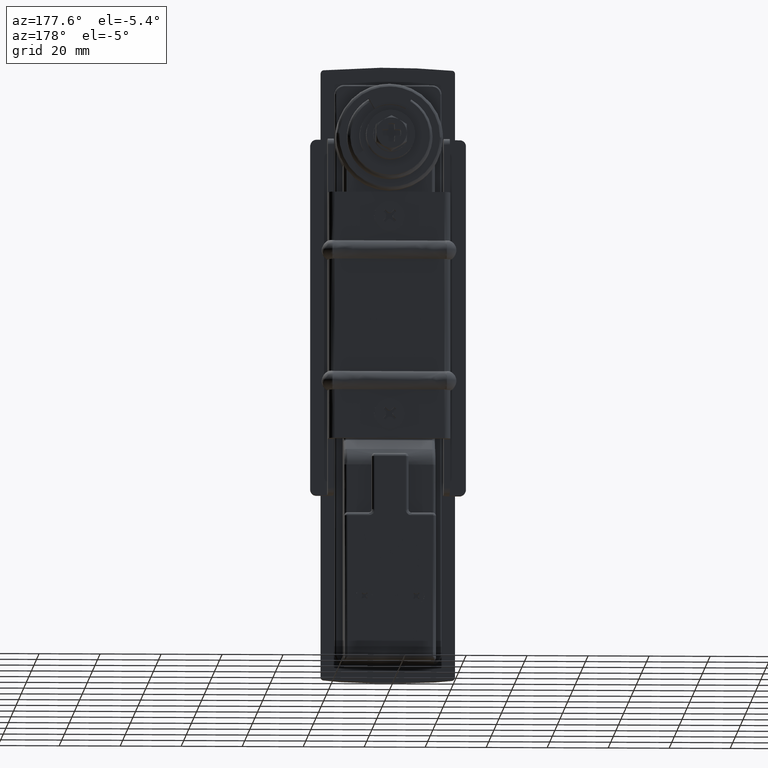
[diagram: clean part render]
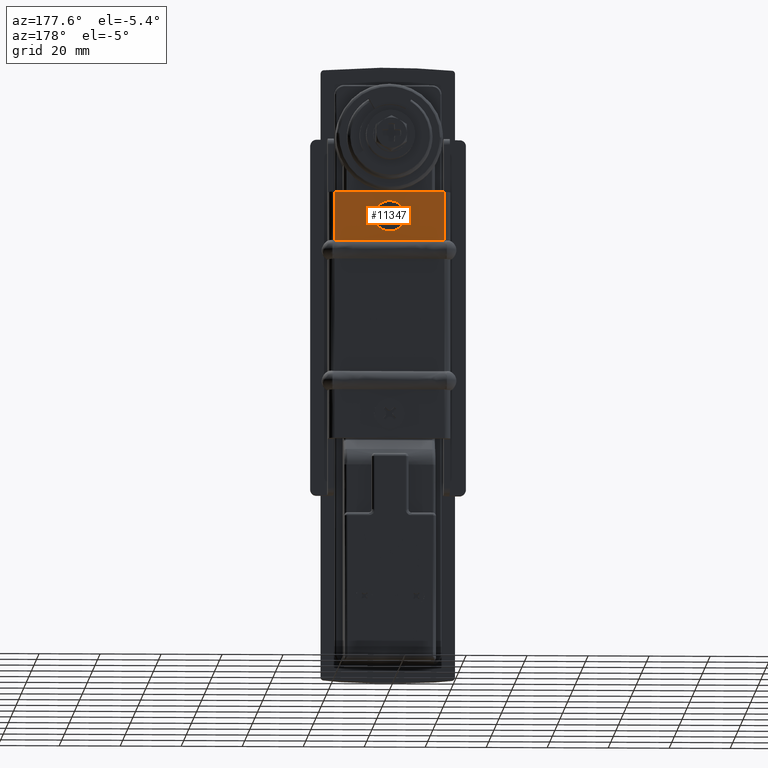
[diagram: same view with one face highlighted and labeled with its STEP entity id]
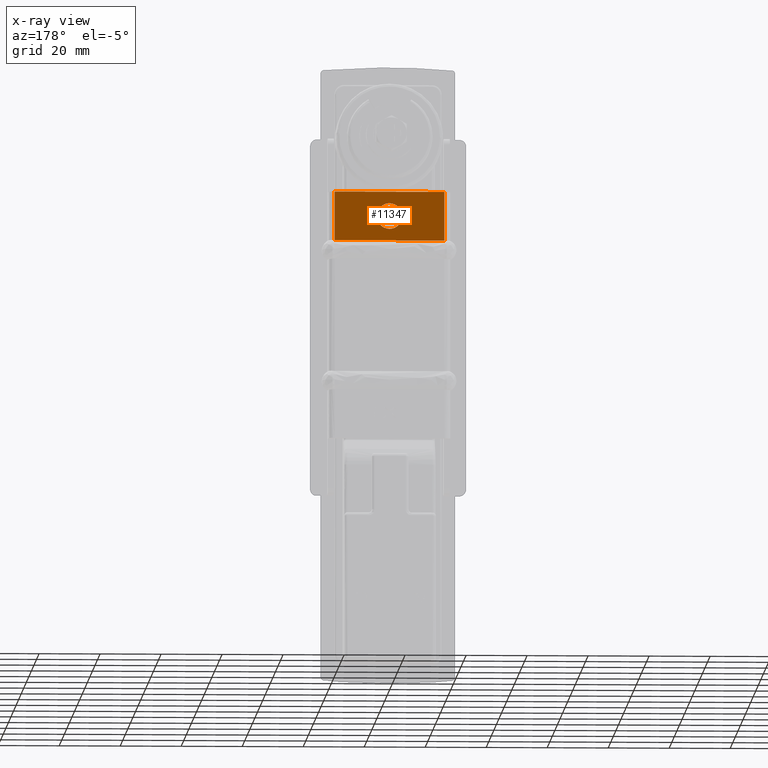
[diagram: x-ray of the same camera — body ghosted, the highlighted face saturated]
A machine part, auxiliary view. The second image highlights one B-rep face of the part: STEP entity #11347.
The next image is the same camera in x-ray: the body ghosted, the highlighted face saturated — about 0% of this face is hidden behind the body in this view.
In plain terms, the highlighted face is a freeform B-spline surface patch.
Its self-contained STEP definition (entity closure, byte-faithful):
#8732=CARTESIAN_POINT('',(18.000000414464662,4.187053143059123,-25.670470853032398));
#8733=VERTEX_POINT('',#8732);
#8739=CARTESIAN_POINT('',(18.0,0.0,-21.800000000000001));
#8740=VERTEX_POINT('',#8739);
#8741=CARTESIAN_POINT('',(18.0,0.0,-21.800000000000001));
#8742=CARTESIAN_POINT('',(17.999999999999996,3.882439216333994,-21.799999999999997));
#8743=CARTESIAN_POINT('',(18.000000414464655,4.187053143059123,-25.670470853032398));
#8751=(BOUNDED_CURVE()B_SPLINE_CURVE(2,(#8741,#8742,#8743),.UNSPECIFIED.,.F.,.U.)B_SPLINE_CURVE_WITH_KNOTS((3,3),(0.0,0.236331263278011),.UNSPECIFIED.)CURVE()GEOMETRIC_REPRESENTATION_ITEM()RATIONAL_B_SPLINE_CURVE((1.0,0.723120702369016,0.969723278215302))REPRESENTATION_ITEM(''));
#8752=EDGE_CURVE('',#8740,#8733,#8751,.T.);
#8754=CARTESIAN_POINT('',(18.000000414464662,-4.187053143059123,-26.329529146967602));
#8755=VERTEX_POINT('',#8754);
#8756=CARTESIAN_POINT('',(18.000000414464662,-4.187053143059123,-26.329529146967602));
#8757=CARTESIAN_POINT('',(18.0,-4.200000000000000,-26.165018907745306));
#8758=CARTESIAN_POINT('',(18.0,-4.200000000000000,-26.0));
#8759=CARTESIAN_POINT('',(18.000000000000007,-4.200000000000000,-21.800000000000004));
#8760=CARTESIAN_POINT('',(18.0,0.0,-21.800000000000001));
#8768=(BOUNDED_CURVE()B_SPLINE_CURVE(2,(#8756,#8757,#8758,#8759,#8760),.UNSPECIFIED.,.F.,.U.)B_SPLINE_CURVE_WITH_KNOTS((3,2,3),(0.736331263278011,0.750000000000000,1.0),.UNSPECIFIED.)CURVE()GEOMETRIC_REPRESENTATION_ITEM()RATIONAL_B_SPLINE_CURVE((0.969723278215302,0.983986078817532,1.0,0.707106781186548,1.0))REPRESENTATION_ITEM(''));
#8769=EDGE_CURVE('',#8755,#8740,#8768,.T.);
#8806=CARTESIAN_POINT('',(18.0,0.0,-30.199999999999999));
#8807=VERTEX_POINT('',#8806);
#8808=CARTESIAN_POINT('',(18.0,0.0,-30.199999999999999));
#8809=CARTESIAN_POINT('',(18.000000000000004,-3.882439216333991,-30.200000000000014));
#8810=CARTESIAN_POINT('',(18.000000414464662,-4.187053143059123,-26.329529146967602));
#8818=(BOUNDED_CURVE()B_SPLINE_CURVE(2,(#8808,#8809,#8810),.UNSPECIFIED.,.F.,.U.)B_SPLINE_CURVE_WITH_KNOTS((3,3),(0.500000000000000,0.736331263278011),.UNSPECIFIED.)CURVE()GEOMETRIC_REPRESENTATION_ITEM()RATIONAL_B_SPLINE_CURVE((1.0,0.723120702369016,0.969723278215302))REPRESENTATION_ITEM(''));
#8819=EDGE_CURVE('',#8807,#8755,#8818,.T.);
#8821=CARTESIAN_POINT('',(18.000000414464658,4.187053143059123,-25.670470853032406));
#8822=CARTESIAN_POINT('',(18.0,4.200000000000000,-25.834981092254694));
#8823=CARTESIAN_POINT('',(18.0,4.200000000000000,-26.0));
#8824=CARTESIAN_POINT('',(18.000000000000007,4.200000000000000,-30.200000000000003));
#8825=CARTESIAN_POINT('',(18.0,0.0,-30.199999999999999));
#8833=(BOUNDED_CURVE()B_SPLINE_CURVE(2,(#8821,#8822,#8823,#8824,#8825),.UNSPECIFIED.,.F.,.U.)B_SPLINE_CURVE_WITH_KNOTS((3,2,3),(0.236331263278011,0.250000000000000,0.500000000000000),.UNSPECIFIED.)CURVE()GEOMETRIC_REPRESENTATION_ITEM()RATIONAL_B_SPLINE_CURVE((0.969723278215302,0.983986078817532,1.0,0.707106781186548,1.0))REPRESENTATION_ITEM(''));
#8834=EDGE_CURVE('',#8733,#8807,#8833,.T.);
#9523=CARTESIAN_POINT('',(18.0,-18.000000000000700,-18.0));
#9524=VERTEX_POINT('',#9523);
#9538=CARTESIAN_POINT('',(18.0,18.000000000000700,-18.0));
#9539=VERTEX_POINT('',#9538);
#9540=CARTESIAN_POINT('',(18.0,18.000000000000700,-18.0));
#9541=CARTESIAN_POINT('',(18.0,-18.000000000000700,-18.0));
#9542=QUASI_UNIFORM_CURVE('',1,(#9540,#9541),.UNSPECIFIED.,.F.,.U.);
#9543=EDGE_CURVE('',#9539,#9524,#9542,.T.);
#10745=CARTESIAN_POINT('',(18.0,18.0,-34.0));
#10746=VERTEX_POINT('',#10745);
#10760=CARTESIAN_POINT('',(18.0,-18.0,-34.0));
#10761=VERTEX_POINT('',#10760);
#10762=CARTESIAN_POINT('',(18.0,18.0,-34.0));
#10763=CARTESIAN_POINT('',(18.0,-18.0,-34.0));
#10764=QUASI_UNIFORM_CURVE('',1,(#10762,#10763),.UNSPECIFIED.,.F.,.U.);
#10765=EDGE_CURVE('',#10746,#10761,#10764,.T.);
#11192=CARTESIAN_POINT('',(18.0,-18.000000000000700,-18.0));
#11193=CARTESIAN_POINT('',(18.0,-18.0,-34.0));
#11194=QUASI_UNIFORM_CURVE('',1,(#11192,#11193),.UNSPECIFIED.,.F.,.U.);
#11195=EDGE_CURVE('',#9524,#10761,#11194,.T.);
#11229=CARTESIAN_POINT('',(18.0,18.0,-34.0));
#11230=CARTESIAN_POINT('',(18.0,18.000000000000700,-18.0));
#11231=QUASI_UNIFORM_CURVE('',1,(#11229,#11230),.UNSPECIFIED.,.F.,.U.);
#11232=EDGE_CURVE('',#10746,#9539,#11231,.T.);
#11330=CARTESIAN_POINT('',(18.0,-19.798199930225788,-17.200800031011099));
#11331=CARTESIAN_POINT('',(18.0,-19.798199930225788,-34.799200398142339));
#11332=CARTESIAN_POINT('',(18.0,19.798200895821029,-17.200800031011099));
#11333=CARTESIAN_POINT('',(18.0,19.798200895821029,-34.799200398142339));
#11334=B_SPLINE_SURFACE_WITH_KNOTS('',1,1,((#11330,#11332),(#11331,#11333)),.UNSPECIFIED.,.F.,.F.,.U.,(2,2),(2,2),(0.0,17.598400367131241),(0.0,39.596400826046818),.UNSPECIFIED.);
#11335=ORIENTED_EDGE('',*,*,#11232,.T.);
#11336=ORIENTED_EDGE('',*,*,#9543,.T.);
#11337=ORIENTED_EDGE('',*,*,#11195,.T.);
#11338=ORIENTED_EDGE('',*,*,#10765,.F.);
#11339=EDGE_LOOP('',(#11335,#11336,#11337,#11338));
#11340=FACE_OUTER_BOUND('',#11339,.T.);
#11341=ORIENTED_EDGE('',*,*,#8819,.T.);
#11342=ORIENTED_EDGE('',*,*,#8769,.T.);
#11343=ORIENTED_EDGE('',*,*,#8752,.T.);
#11344=ORIENTED_EDGE('',*,*,#8834,.T.);
#11345=EDGE_LOOP('',(#11341,#11342,#11343,#11344));
#11346=FACE_BOUND('',#11345,.T.);
#11347=ADVANCED_FACE('',(#11340,#11346),#11334,.T.);